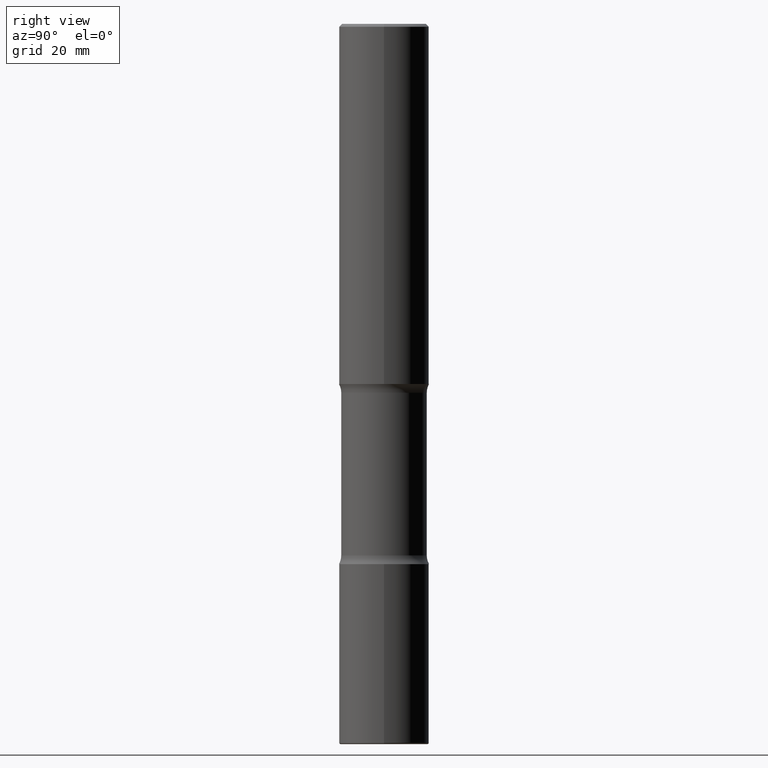
[diagram: clean part render]
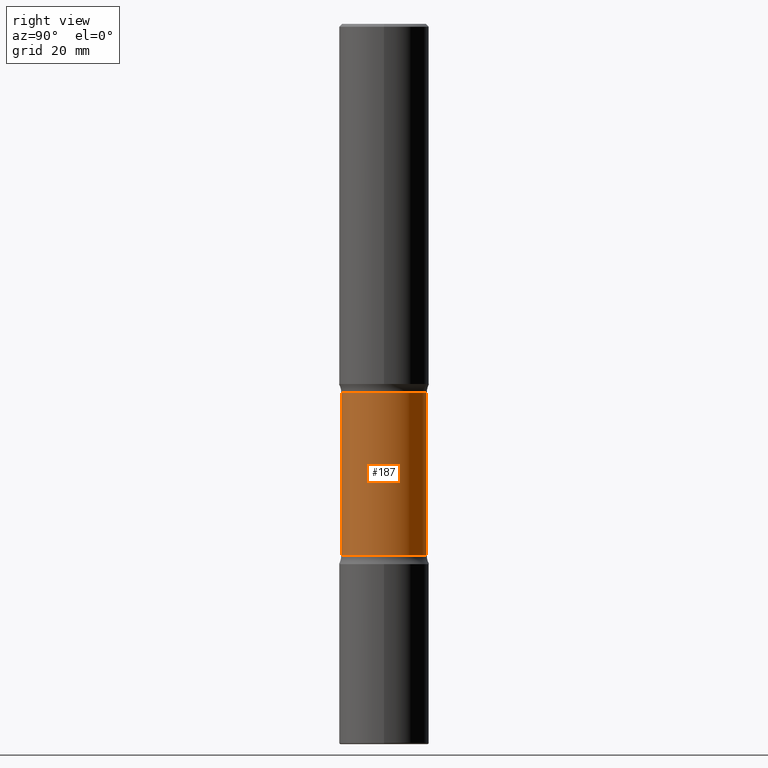
[diagram: same view with one face highlighted and labeled with its STEP entity id]
A machine part, right view. The second image highlights one B-rep face of the part: STEP entity #187.
In plain terms, the highlighted cylindrical surface (partial cylindrical patch) has radius 7.5406 mm, axis along (0, -0, -1).
Its self-contained STEP definition (entity closure, byte-faithful):
#33 = CARTESIAN_POINT ( 'NONE',  ( 2.073067044938172750E-15, 0.2968749999999910627, -2.560515364784492043 ) ) ;
#55 = EDGE_CURVE ( 'NONE', #483, #244, #248, .T. ) ;
#67 = ORIENTED_EDGE ( 'NONE', *, *, #106, .F. ) ;
#81 = AXIS2_PLACEMENT_3D ( 'NONE', #546, #367, #332 ) ;
#89 = VERTEX_POINT ( 'NONE', #543 ) ;
#106 = EDGE_CURVE ( 'NONE', #506, #483, #511, .T. ) ;
#151 = VECTOR ( 'NONE', #549, 39.37007874015748143 ) ;
#170 = FACE_OUTER_BOUND ( 'NONE', #464, .T. ) ;
#171 = ORIENTED_EDGE ( 'NONE', *, *, #559, .T. ) ;
#174 = CARTESIAN_POINT ( 'NONE',  ( -2.090307983695923198E-15, -0.2968750000000130451, -3.689484635215508401 ) ) ;
#187 = ADVANCED_FACE ( 'NONE', ( #170 ), #484, .T. ) ;
#235 = CARTESIAN_POINT ( 'NONE',  ( 2.073067044938201149E-15, 0.2968749999999872324, -3.689484635215510622 ) ) ;
#244 = VERTEX_POINT ( 'NONE', #174 ) ;
#246 = CARTESIAN_POINT ( 'NONE',  ( 1.249789967597276859E-28, -1.706995561143730792E-14, -5.000000000000000000 ) ) ;
#248 = CIRCLE ( 'NONE', #279, 0.2968750000000001110 ) ;
#271 = CIRCLE ( 'NONE', #81, 0.2968750000000003886 ) ;
#278 = DIRECTION ( 'NONE',  ( 2.661913322222804749E-29, -3.181520472620407774E-15, -1.000000000000000000 ) ) ;
#279 = AXIS2_PLACEMENT_3D ( 'NONE', #423, #278, #467 ) ;
#326 = CARTESIAN_POINT ( 'NONE',  ( -2.036710343088299976E-15, -0.2968750000000173195, -4.999999999999999112 ) ) ;
#327 = CARTESIAN_POINT ( 'NONE',  ( 2.073067044938236647E-15, 0.2968749999999831801, -5.000000000000000888 ) ) ;
#332 = DIRECTION ( 'NONE',  ( 6.982962677686265922E-15, 1.000000000000000000, -3.680805717779212911E-15 ) ) ;
#351 = DIRECTION ( 'NONE',  ( 6.982962677686265133E-15, 1.000000000000000000, -3.680805717779215277E-15 ) ) ;
#367 = DIRECTION ( 'NONE',  ( 2.661913322222804749E-29, -3.181520472620407774E-15, -1.000000000000000000 ) ) ;
#423 = CARTESIAN_POINT ( 'NONE',  ( 9.009421367475253036E-29, -1.290052414869184702E-14, -3.689484635215509289 ) ) ;
#429 = DIRECTION ( 'NONE',  ( 2.661913322222804749E-29, -3.181520472620407774E-15, -1.000000000000000000 ) ) ;
#441 = AXIS2_PLACEMENT_3D ( 'NONE', #246, #429, #351 ) ;
#464 = EDGE_LOOP ( 'NONE', ( #468, #171, #512, #67 ) ) ;
#467 = DIRECTION ( 'NONE',  ( 6.982962677686265133E-15, 1.000000000000000000, -3.680805717779216066E-15 ) ) ;
#468 = ORIENTED_EDGE ( 'NONE', *, *, #542, .T. ) ;
#483 = VERTEX_POINT ( 'NONE', #235 ) ;
#484 = CYLINDRICAL_SURFACE ( 'NONE', #441, 0.2968750000000002220 ) ;
#503 = DIRECTION ( 'NONE',  ( 2.661913322222804749E-29, -3.181520472620407379E-15, -1.000000000000000000 ) ) ;
#505 = LINE ( 'NONE', #326, #151 ) ;
#506 = VERTEX_POINT ( 'NONE', #33 ) ;
#511 = LINE ( 'NONE', #327, #525 ) ;
#512 = ORIENTED_EDGE ( 'NONE', *, *, #55, .F. ) ;
#525 = VECTOR ( 'NONE', #503, 39.37007874015748143 ) ;
#542 = EDGE_CURVE ( 'NONE', #506, #89, #271, .T. ) ;
#543 = CARTESIAN_POINT ( 'NONE',  ( -2.090307983695956331E-15, -0.2968750000000097145, -2.560515364784489822 ) ) ;
#546 = CARTESIAN_POINT ( 'NONE',  ( 6.004203026134765083E-29, -9.308685301856234143E-15, -2.560515364784490711 ) ) ;
#549 = DIRECTION ( 'NONE',  ( 2.661913322222804749E-29, -3.181520472620407379E-15, -1.000000000000000000 ) ) ;
#559 = EDGE_CURVE ( 'NONE', #89, #244, #505, .T. ) ;